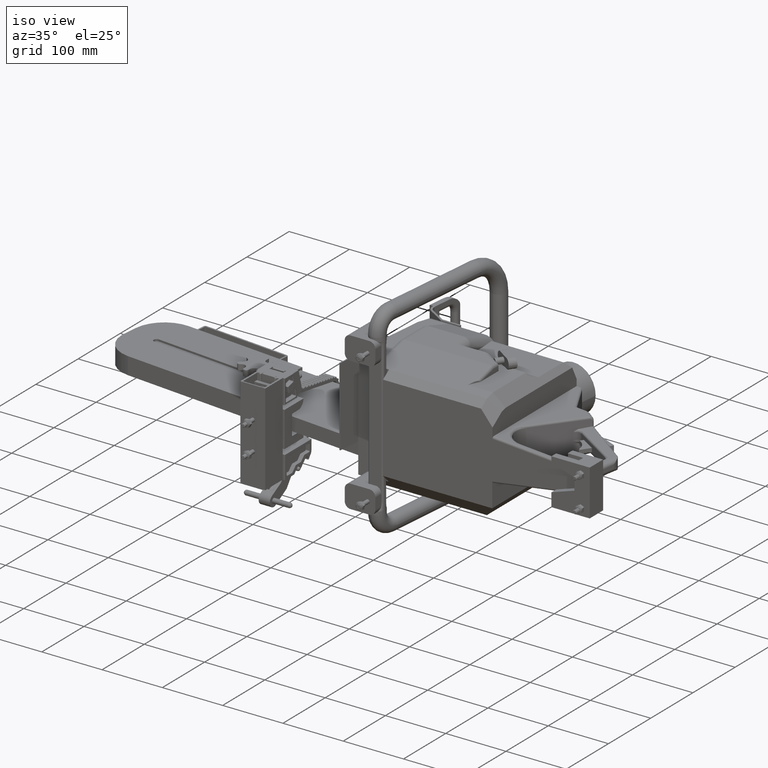
[diagram: clean part render]
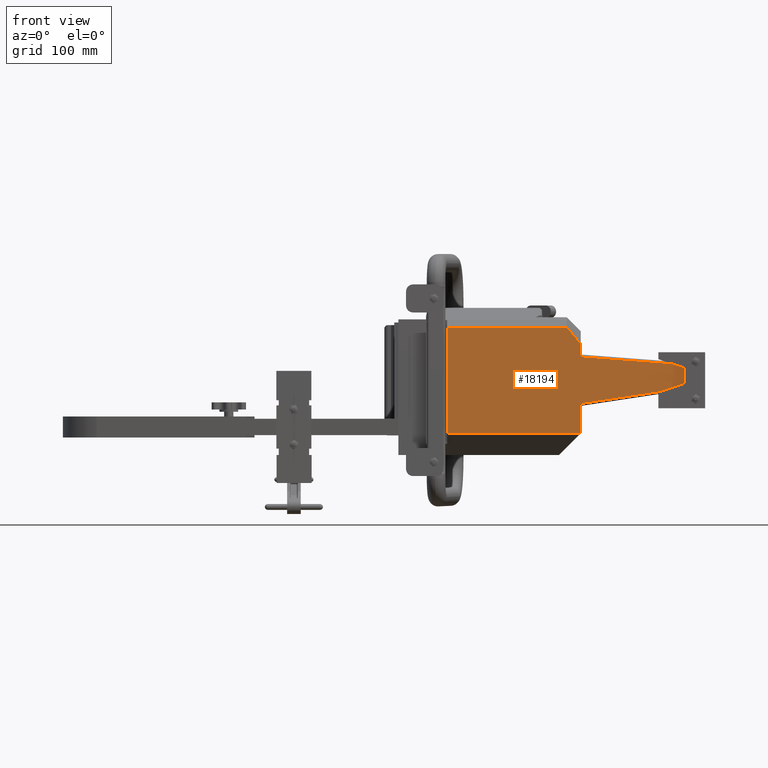
[diagram: tour spotlight — one face highlighted and labeled with its STEP entity id]
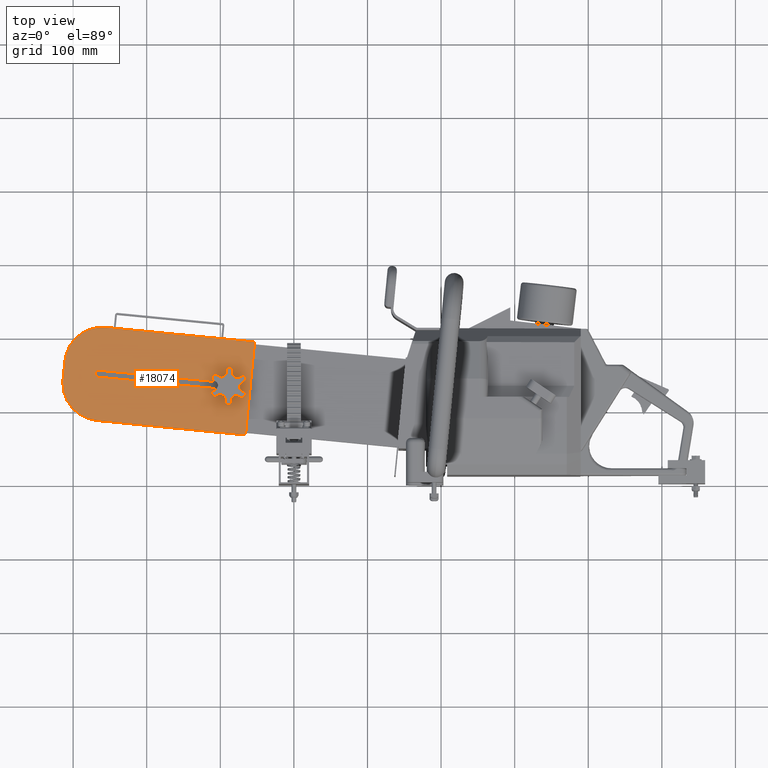
[diagram: tour spotlight — one face highlighted and labeled with its STEP entity id]
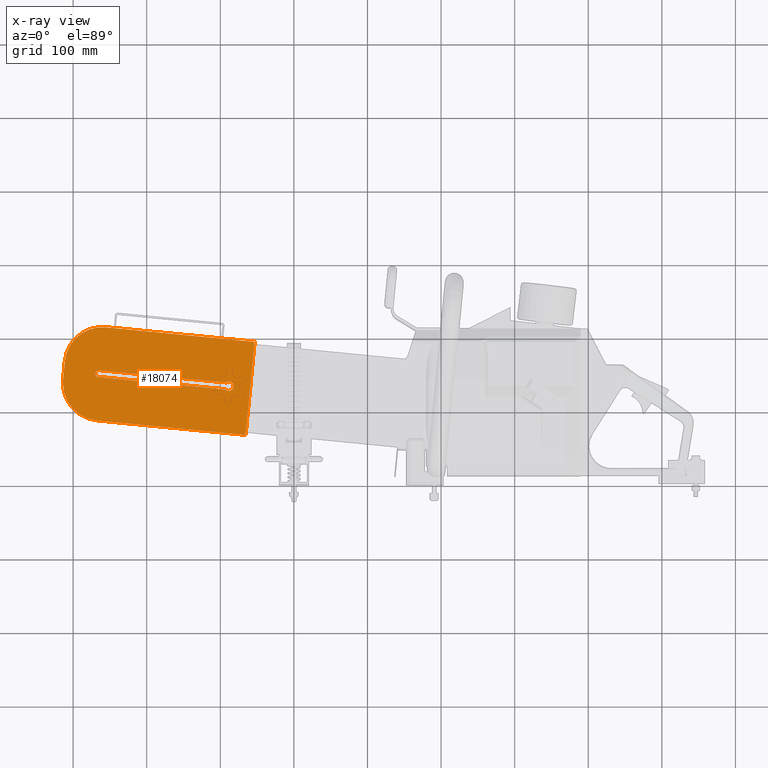
[diagram: x-ray of the same camera — body ghosted, this tour face saturated]
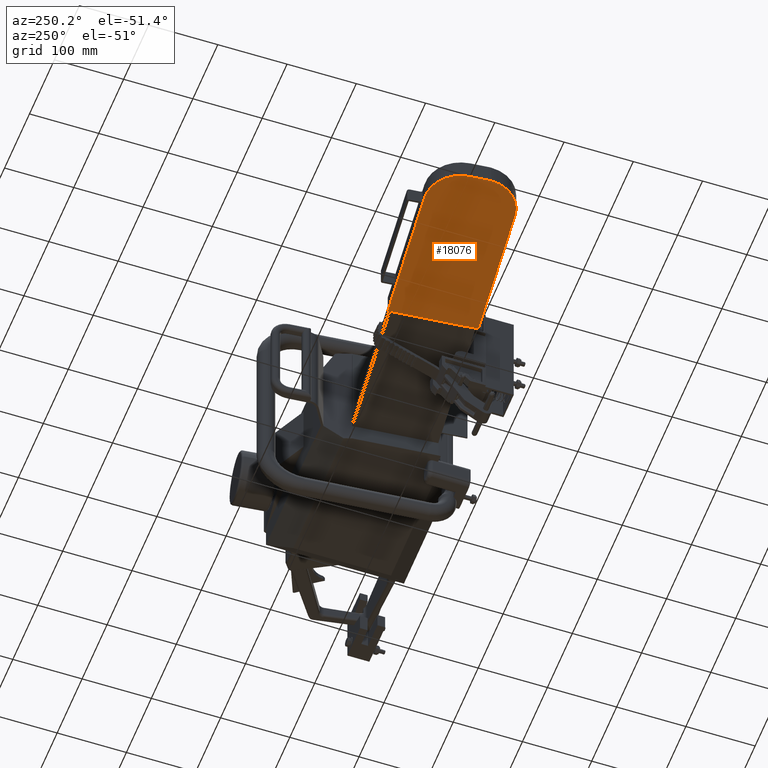
[diagram: tour spotlight — one face highlighted and labeled with its STEP entity id]
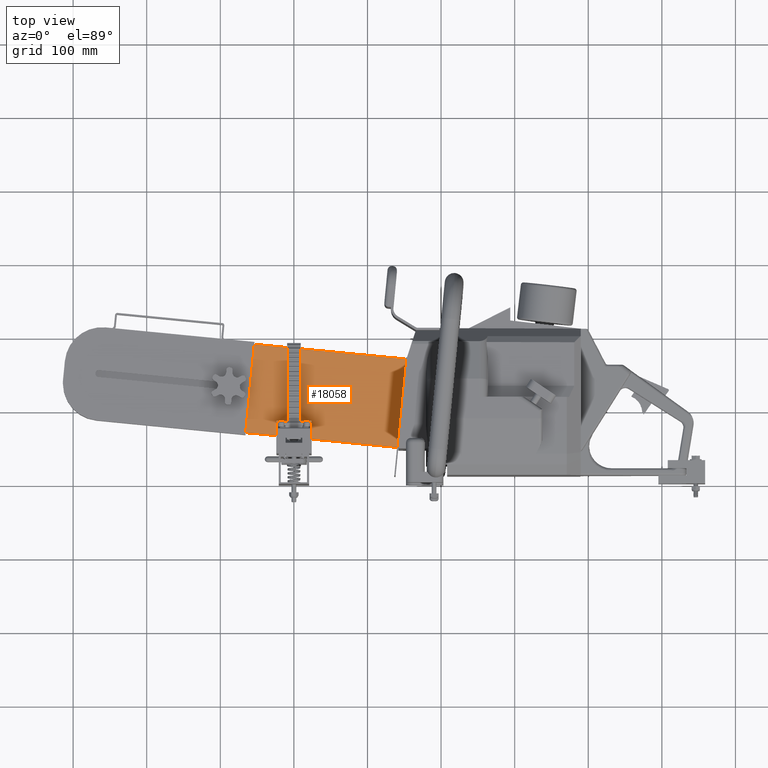
[diagram: tour spotlight — one face highlighted and labeled with its STEP entity id]
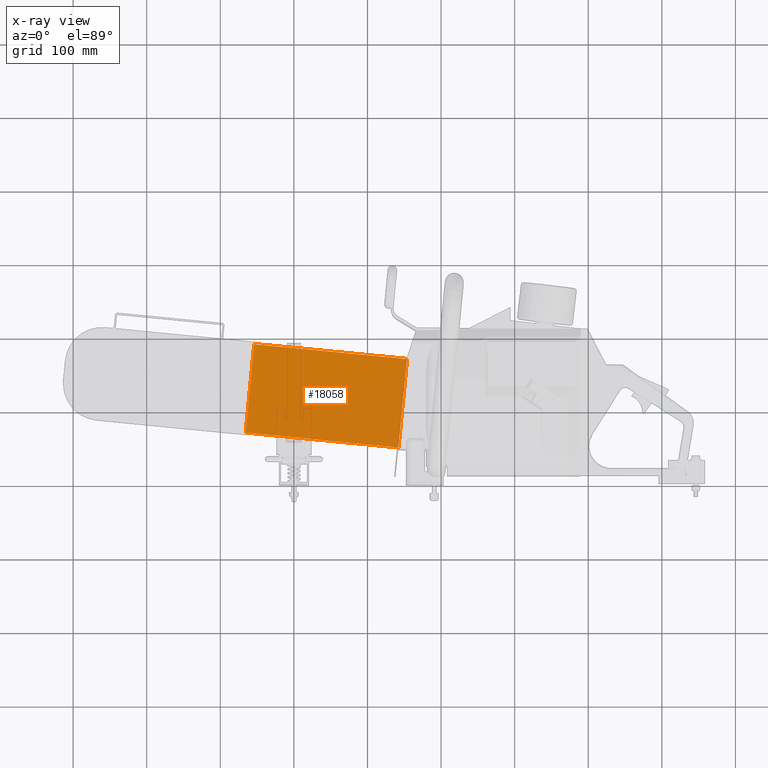
[diagram: x-ray of the same camera — body ghosted, this tour face saturated]
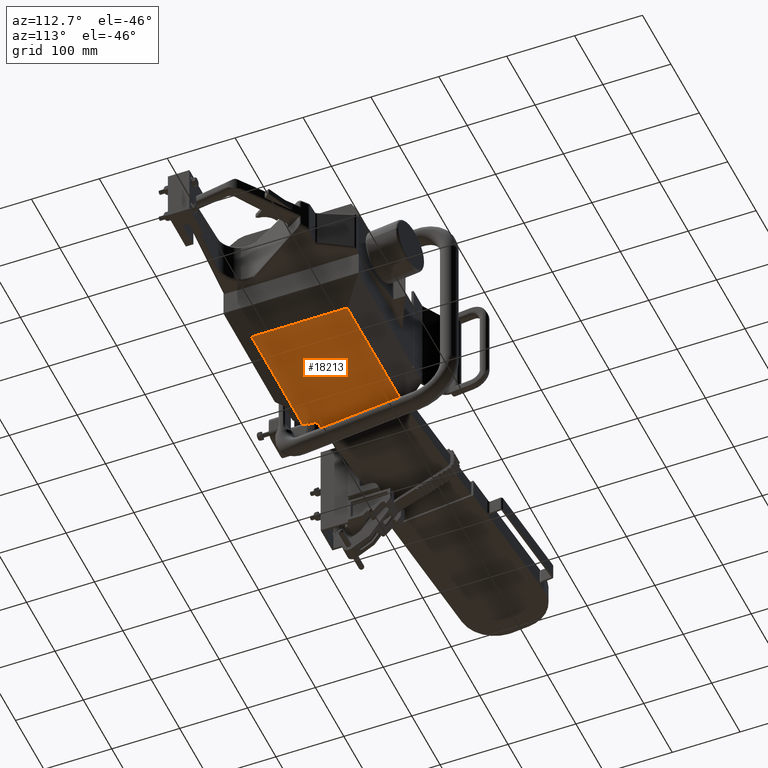
[diagram: tour spotlight — one face highlighted and labeled with its STEP entity id]
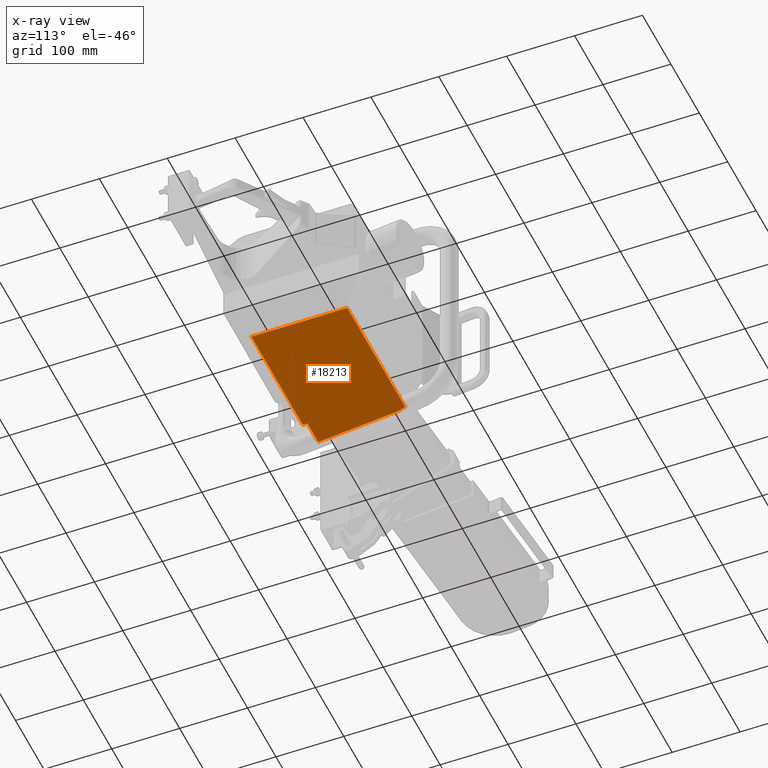
[diagram: x-ray of the same camera — body ghosted, this tour face saturated]
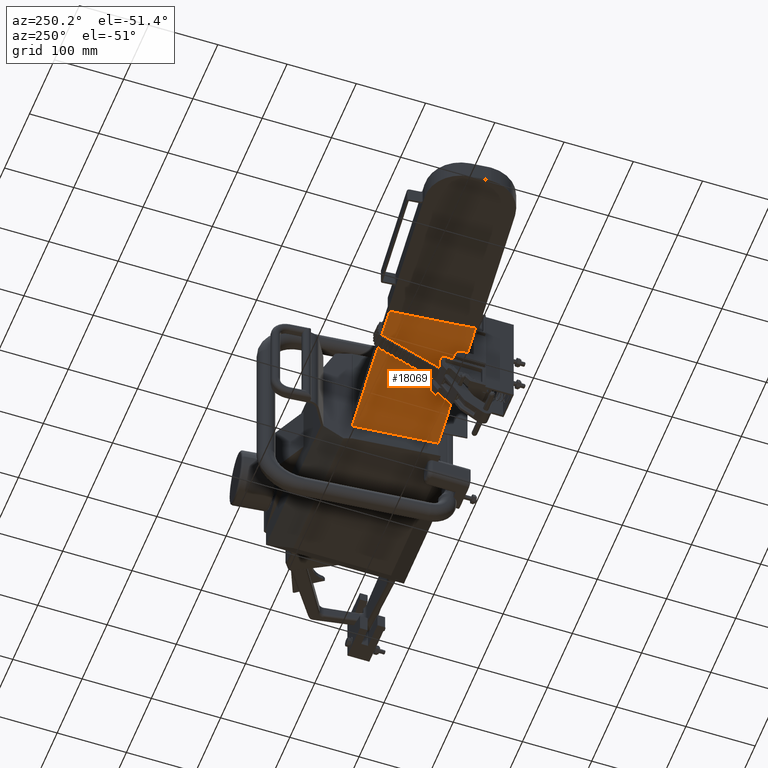
[diagram: tour spotlight — one face highlighted and labeled with its STEP entity id]
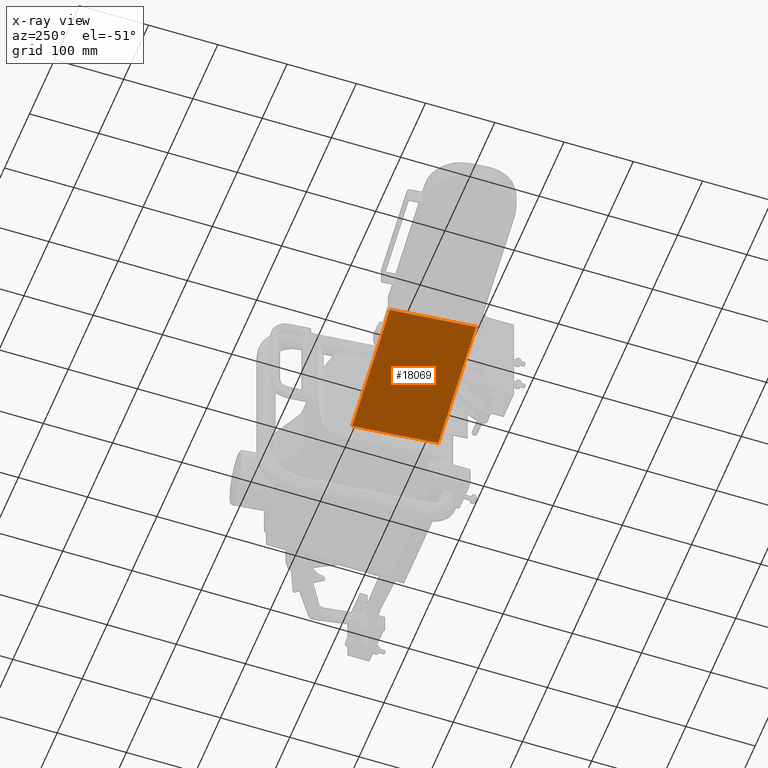
[diagram: x-ray of the same camera — body ghosted, this tour face saturated]
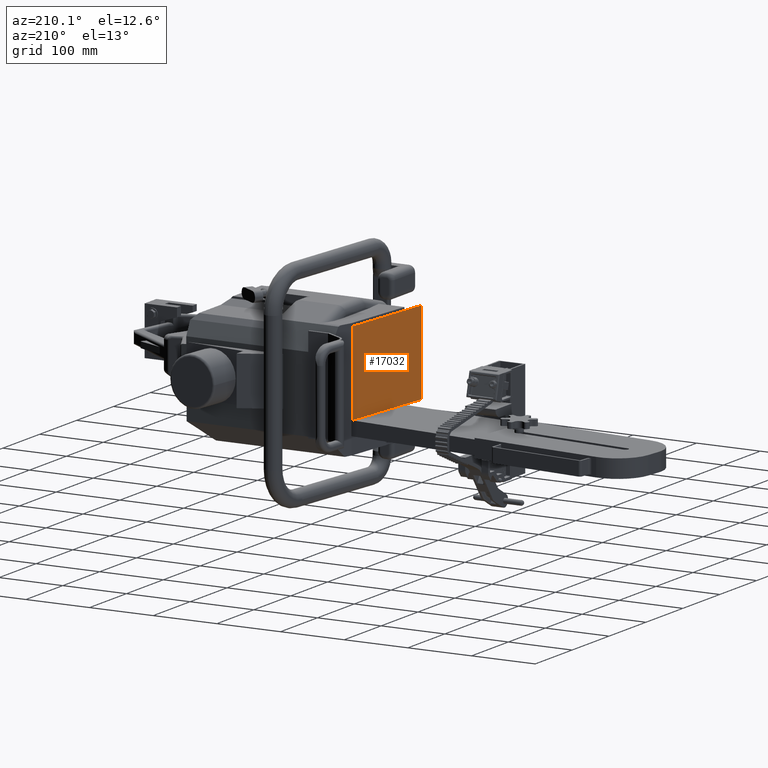
[diagram: tour spotlight — one face highlighted and labeled with its STEP entity id]
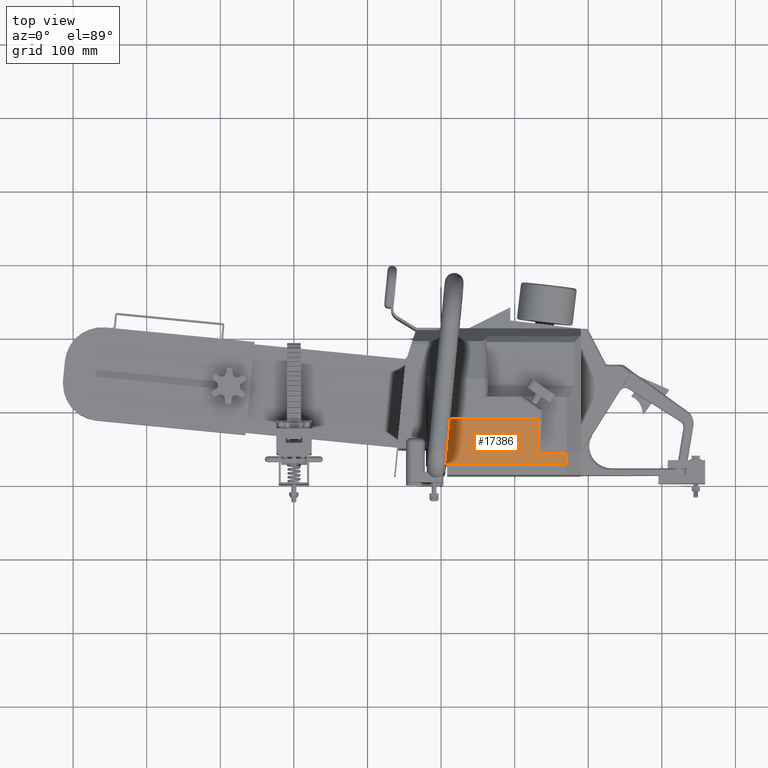
[diagram: tour spotlight — one face highlighted and labeled with its STEP entity id]
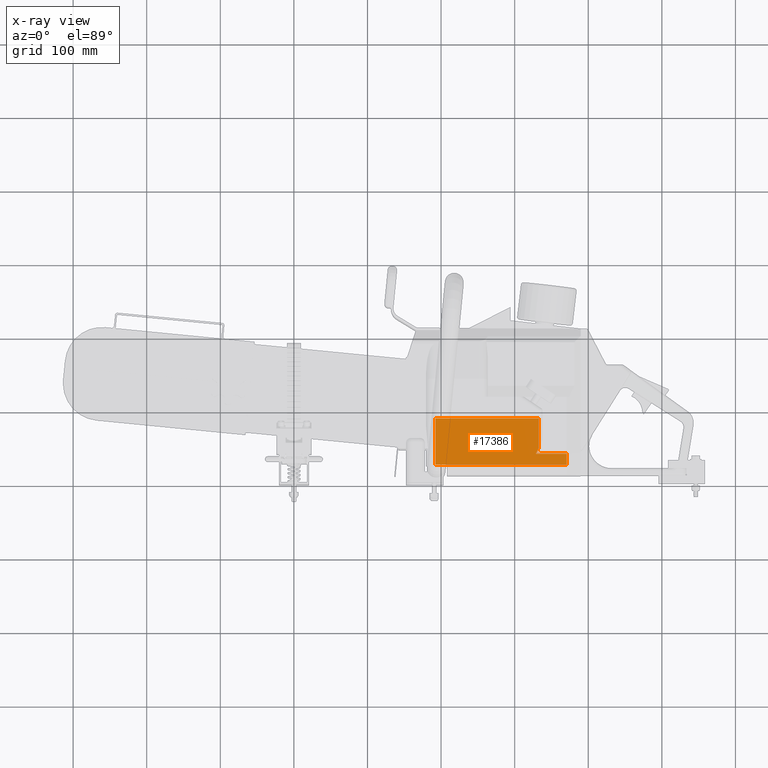
[diagram: x-ray of the same camera — body ghosted, this tour face saturated]
A machine part: a face-by-face anatomy tour. The part has 2120 B-rep faces; the first image is the clean iso view, then the 8 largest visible faces are spotlighted one at a time (largest first), each with its STEP entity span.

Face 1 — front view, entity #18194. In plain terms, the highlighted planar face has unit normal (0, 1, 0).
Definition (entity closure, byte-faithful):
#3891 = CARTESIAN_POINT ( 'NONE',  ( 15.34912009980632600, 0.4350000000000019400, 6.500000000000000000 ) ) ;
#3893 = DIRECTION ( 'NONE',  ( 0.0000000000000000000, 0.0000000000000000000, -1.000000000000000000 ) ) ;
#4304 = LINE ( 'NONE', #3891, #4309 ) ;
#4309 = VECTOR ( 'NONE', #3893, 39.37007874015748100 ) ;
#4611 = LINE ( 'NONE', #5440, #4614 ) ;
#4614 = VECTOR ( 'NONE', #5442, 39.37007874015748900 ) ;
#4616 = LINE ( 'NONE', #5447, #4620 ) ;
#4619 = VECTOR ( 'NONE', #5452, 39.37007874015748100 ) ;
#4620 = VECTOR ( 'NONE', #5449, 39.37007874015748100 ) ;
#4621 = LINE ( 'NONE', #5445, #4619 ) ;
#4623 = LINE ( 'NONE', #5461, #4633 ) ;
#4624 = LINE ( 'NONE', #5459, #4631 ) ;
#4625 = LINE ( 'NONE', #5453, #4629 ) ;
#4628 = CIRCLE ( 'NONE', #64348, 0.2499999999999998100 ) ;
#4629 = VECTOR ( 'NONE', #5458, 39.37007874015748100 ) ;
#4630 = LINE ( 'NONE', #5463, #4635 ) ;
#4631 = VECTOR ( 'NONE', #5460, 39.37007874015748100 ) ;
#4633 = VECTOR ( 'NONE', #5462, 39.37007874015748100 ) ;
#4635 = VECTOR ( 'NONE', #5464, 39.37007874015748100 ) ;
#4636 = VECTOR ( 'NONE', #5471, 39.37007874015748100 ) ;
#4638 = LINE ( 'NONE', #5470, #4636 ) ;
#4643 = CIRCLE ( 'NONE', #64349, 0.2499999999999998100 ) ;
#5440 = CARTESIAN_POINT ( 'NONE',  ( 14.41038544176296700, 0.4350000000000000000, 5.565337142305295100 ) ) ;
#5442 = DIRECTION ( 'NONE',  ( -0.6339215245527856100, -0.0000000000000000000, 0.7733973756799745700 ) ) ;
#5445 = CARTESIAN_POINT ( 'NONE',  ( -12.35850997937516400, 0.4349999999999985000, 5.335076954605308500 ) ) ;
#5447 = CARTESIAN_POINT ( 'NONE',  ( 8.198095042260650400, 0.4350000000000000000, 6.500000000000000000 ) ) ;
#5448 = CARTESIAN_POINT ( 'NONE',  ( 20.62499999999998900, 0.4350000000000000000, 2.305792795370110100 ) ) ;
#5449 = DIRECTION ( 'NONE',  ( -0.0000000000000000000, -0.0000000000000000000, -1.000000000000000000 ) ) ;
#5452 = DIRECTION ( 'NONE',  ( 1.000000000000000000, 1.240801155314842800E-016, -0.0000000000000000000 ) ) ;
#5453 = CARTESIAN_POINT ( 'NONE',  ( 21.65002465993643500, 0.4350000000000000000, 2.208188765809159900 ) ) ;
#5454 = DIRECTION ( 'NONE',  ( -0.0000000000000000000, -1.000000000000000000, 0.0000000000000000000 ) ) ;
#5455 = DIRECTION ( 'NONE',  ( 0.0000000000000000000, 0.0000000000000000000, 1.000000000000000000 ) ) ;
#5458 = DIRECTION ( 'NONE',  ( 0.9887240252346049000, -0.0000000000000000000, 0.1497491299603454000 ) ) ;
#5459 = CARTESIAN_POINT ( 'NONE',  ( 20.75835197187606300, 0.4350000000000000000, 3.337107564974773200 ) ) ;
#5460 = DIRECTION ( 'NONE',  ( -0.9970941615189520300, -0.0000000000000000000, 0.07617895421189593800 ) ) ;
#5461 = CARTESIAN_POINT ( 'NONE',  ( 15.32805962627142200, 0.4350000000000000000, -0.3499999999999970900 ) ) ;
#5462 = DIRECTION ( 'NONE',  ( 1.000000000000000000, 0.0000000000000000000, 0.0000000000000000000 ) ) ;
#5463 = CARTESIAN_POINT ( 'NONE',  ( 15.32805962627142000, 0.4350000000000019400, 1.124257622154827500 ) ) ;
#5464 = DIRECTION ( 'NONE',  ( 8.327987223818647000E-016, 0.0000000000000000000, -1.000000000000000000 ) ) ;
#5468 = CARTESIAN_POINT ( 'NONE',  ( 20.62499999999998900, 0.4350000000000000000, 3.096567207306830200 ) ) ;
#5470 = CARTESIAN_POINT ( 'NONE',  ( 20.87499999999998900, 0.4350000000000000000, 6.500000000000000000 ) ) ;
#5471 = DIRECTION ( 'NONE',  ( -0.0000000000000000000, -0.0000000000000000000, 1.000000000000000000 ) ) ;
#5473 = DIRECTION ( 'NONE',  ( -0.0000000000000000000, -1.000000000000000000, 0.0000000000000000000 ) ) ;
#5474 = DIRECTION ( 'NONE',  ( 0.0000000000000000000, 0.0000000000000000000, 1.000000000000000000 ) ) ;
#12749 = VERTEX_POINT ( 'NONE', #53191 ) ;
#12750 = VERTEX_POINT ( 'NONE', #53192 ) ;
#12856 = VERTEX_POINT ( 'NONE', #53298 ) ;
#12857 = VERTEX_POINT ( 'NONE', #53299 ) ;
#12858 = VERTEX_POINT ( 'NONE', #53300 ) ;
#12859 = VERTEX_POINT ( 'NONE', #53301 ) ;
#12860 = VERTEX_POINT ( 'NONE', #53302 ) ;
#12861 = VERTEX_POINT ( 'NONE', #53303 ) ;
#12862 = VERTEX_POINT ( 'NONE', #53304 ) ;
#12863 = VERTEX_POINT ( 'NONE', #53305 ) ;
#12864 = VERTEX_POINT ( 'NONE', #53306 ) ;
#13302 = EDGE_LOOP ( 'NONE', ( #22552, #22553, #22554, #22555, #22556, #25815, #25817, #25819, #25821, #25823, #25826 ) ) ;
#18194 = ADVANCED_FACE ( 'NONE', ( #48000 ), #62930, .F. ) ;
#20116 = EDGE_CURVE ( 'NONE', #12749, #12750, #4304, .T. ) ;
#20401 = EDGE_CURVE ( 'NONE', #12749, #12859, #4611, .T. ) ;
#20408 = EDGE_CURVE ( 'NONE', #12857, #12856, #4616, .T. ) ;
#20412 = EDGE_CURVE ( 'NONE', #12857, #12859, #4621, .T. ) ;
#20414 = EDGE_CURVE ( 'NONE', #12862, #12863, #4628, .T. ) ;
#20419 = EDGE_CURVE ( 'NONE', #12861, #12862, #4625, .T. ) ;
#20421 = EDGE_CURVE ( 'NONE', #12858, #12750, #4624, .T. ) ;
#20423 = EDGE_CURVE ( 'NONE', #12856, #12860, #4623, .T. ) ;
#20425 = EDGE_CURVE ( 'NONE', #12861, #12860, #4630, .T. ) ;
#20430 = EDGE_CURVE ( 'NONE', #12863, #12864, #4638, .T. ) ;
#20432 = EDGE_CURVE ( 'NONE', #12864, #12858, #4643, .T. ) ;
#22552 = ORIENTED_EDGE ( 'NONE', *, *, #20421, .T. ) ;
#22553 = ORIENTED_EDGE ( 'NONE', *, *, #20116, .F. ) ;
#22554 = ORIENTED_EDGE ( 'NONE', *, *, #20401, .T. ) ;
#22555 = ORIENTED_EDGE ( 'NONE', *, *, #20412, .F. ) ;
#22556 = ORIENTED_EDGE ( 'NONE', *, *, #20408, .T. ) ;
#25815 = ORIENTED_EDGE ( 'NONE', *, *, #20423, .T. ) ;
#25817 = ORIENTED_EDGE ( 'NONE', *, *, #20425, .F. ) ;
#25819 = ORIENTED_EDGE ( 'NONE', *, *, #20419, .T. ) ;
#25821 = ORIENTED_EDGE ( 'NONE', *, *, #20414, .T. ) ;
#25823 = ORIENTED_EDGE ( 'NONE', *, *, #20430, .T. ) ;
#25826 = ORIENTED_EDGE ( 'NONE', *, *, #20432, .T. ) ;
#48000 = FACE_OUTER_BOUND ( 'NONE', #13302, .T. ) ;
#53191 = CARTESIAN_POINT ( 'NONE',  ( 15.34912009980632600, 0.4350000000000009400, 4.420061437236350700 ) ) ;
#53192 = CARTESIAN_POINT ( 'NONE',  ( 15.34912009980632600, 0.4350000000000000000, 3.750378089471868600 ) ) ;
#53298 = CARTESIAN_POINT ( 'NONE',  ( 8.198095042260650400, 0.4350000000000000000, -0.3499999999999970900 ) ) ;
#53299 = CARTESIAN_POINT ( 'NONE',  ( 8.198095042260650400, 0.4350000000000010500, 5.335076954605308500 ) ) ;
#53300 = CARTESIAN_POINT ( 'NONE',  ( 20.64404473855296400, 0.4350000000000000000, 3.345840747686568100 ) ) ;
#53301 = CARTESIAN_POINT ( 'NONE',  ( 14.59912009980631400, 0.4350000000000009400, 5.335076954605310300 ) ) ;
#53302 = CARTESIAN_POINT ( 'NONE',  ( 15.32805962627142200, 0.4350000000000018300, -0.3499999999999988100 ) ) ;
#53303 = CARTESIAN_POINT ( 'NONE',  ( 15.32805962627142000, 0.4350000000000000000, 1.250683193709377000 ) ) ;
#53304 = CARTESIAN_POINT ( 'NONE',  ( 20.66243728249007500, 0.4350000000000000000, 2.058611789061458400 ) ) ;
#53305 = CARTESIAN_POINT ( 'NONE',  ( 20.87499999999998900, 0.4350000000000000000, 2.305792795370110100 ) ) ;
#53306 = CARTESIAN_POINT ( 'NONE',  ( 20.87499999999998900, 0.4350000000000000000, 3.096567207306830200 ) ) ;
#62925 = CARTESIAN_POINT ( 'NONE',  ( 20.99999999999999300, 0.4350000000000000000, 6.500000000000000000 ) ) ;
#62930 = PLANE ( 'NONE',  #63632 ) ;
#62935 = DIRECTION ( 'NONE',  ( 0.0000000000000000000, 1.000000000000000000, -0.0000000000000000000 ) ) ;
#62936 = DIRECTION ( 'NONE',  ( 0.0000000000000000000, 0.0000000000000000000, 1.000000000000000000 ) ) ;
#63632 = AXIS2_PLACEMENT_3D ( 'NONE', #62925, #62935, #62936 ) ;
#64348 = AXIS2_PLACEMENT_3D ( 'NONE', #5448, #5454, #5455 ) ;
#64349 = AXIS2_PLACEMENT_3D ( 'NONE', #5468, #5473, #5474 ) ;

Face 2 — top view, entity #18074. An x-ray twin of the same camera follows (body ghosted, this face saturated) — the face is partly hidden behind the body. In plain terms, the highlighted planar face has unit normal (0, 0, 1).
Definition (entity closure, byte-faithful):
#3545 = CARTESIAN_POINT ( 'NONE',  ( -3.483961746939009600, 5.254724945186095100, 0.5624999999999998900 ) ) ;
#3564 = DIRECTION ( 'NONE',  ( 0.0000000000000000000, 0.0000000000000000000, 1.000000000000000000 ) ) ;
#3565 = DIRECTION ( 'NONE',  ( 1.000000000000000000, 0.0000000000000000000, 0.0000000000000000000 ) ) ;
#3607 = CARTESIAN_POINT ( 'NONE',  ( -10.35847060929642700, 5.421561490035578900, 0.5624999999999998900 ) ) ;
#3608 = DIRECTION ( 'NONE',  ( 0.0000000000000000000, 0.0000000000000000000, 1.000000000000000000 ) ) ;
#3609 = DIRECTION ( 'NONE',  ( 1.000000000000000000, 0.0000000000000000000, 0.0000000000000000000 ) ) ;
#3931 = CARTESIAN_POINT ( 'NONE',  ( -2.105446150163820600, 7.632350325939833100, 0.5624999999999998900 ) ) ;
#3933 = DIRECTION ( 'NONE',  ( -0.9952953723393649400, 0.09688716013923000200, 0.0000000000000000000 ) ) ;
#4001 = CARTESIAN_POINT ( 'NONE',  ( -10.26158344915719700, 6.416856862374941400, 0.5624999999999998900 ) ) ;
#4003 = DIRECTION ( 'NONE',  ( 0.0000000000000000000, 0.0000000000000000000, 1.000000000000000000 ) ) ;
#4004 = DIRECTION ( 'NONE',  ( 1.000000000000000000, 0.0000000000000000000, 0.0000000000000000000 ) ) ;
#4005 = CARTESIAN_POINT ( 'NONE',  ( -10.35847060929642700, 5.421561490035578900, 0.5624999999999998900 ) ) ;
#4010 = CARTESIAN_POINT ( 'NONE',  ( -12.25217419383592900, 6.610631182653403200, 0.5624999999999998900 ) ) ;
#4012 = DIRECTION ( 'NONE',  ( -0.09688716013922957200, -0.9952953723393651600, 0.0000000000000000000 ) ) ;
#4014 = DIRECTION ( 'NONE',  ( 0.0000000000000000000, 0.0000000000000000000, 1.000000000000000000 ) ) ;
#4015 = DIRECTION ( 'NONE',  ( 1.000000000000000000, 0.0000000000000000000, 0.0000000000000000000 ) ) ;
#4021 = CARTESIAN_POINT ( 'NONE',  ( -10.55224492957487000, 3.430970745356845900, 0.5624999999999998900 ) ) ;
#4022 = DIRECTION ( 'NONE',  ( 0.9952953723393649400, -0.09688716013922997500, 0.0000000000000000000 ) ) ;
#4035 = CARTESIAN_POINT ( 'NONE',  ( -2.105446150163820600, 7.632350325939833100, 0.5624999999999998900 ) ) ;
#4036 = DIRECTION ( 'NONE',  ( 0.09688716013922994700, 0.9952953723393649400, -0.0000000000000000000 ) ) ;
#4038 = CARTESIAN_POINT ( 'NONE',  ( -10.43787459524712900, 5.931654514490423600, 0.5624999999999998900 ) ) ;
#4041 = CARTESIAN_POINT ( 'NONE',  ( -10.45604093777323500, 5.745036632176790700, 0.5624999999999998900 ) ) ;
#4044 = DIRECTION ( 'NONE',  ( 0.0000000000000000000, 0.0000000000000000000, 1.000000000000000000 ) ) ;
#4045 = DIRECTION ( 'NONE',  ( 1.000000000000000000, 0.0000000000000000000, 0.0000000000000000000 ) ) ;
#4046 = CARTESIAN_POINT ( 'NONE',  ( -3.483961746939009600, 5.254724945186095100, 0.5624999999999998900 ) ) ;
#4047 = DIRECTION ( 'NONE',  ( 0.9952953723393649400, -0.09688716013922980800, 0.0000000000000000000 ) ) ;
#4049 = DIRECTION ( 'NONE',  ( 0.0000000000000000000, 0.0000000000000000000, 1.000000000000000000 ) ) ;
#4050 = DIRECTION ( 'NONE',  ( 1.000000000000000000, 0.0000000000000000000, 0.0000000000000000000 ) ) ;
#4051 = CARTESIAN_POINT ( 'NONE',  ( -10.41970825272102300, 6.118272396804052000, 0.5624999999999998900 ) ) ;
#4052 = DIRECTION ( 'NONE',  ( -0.9952953723393649400, 0.09688716013922982200, -0.0000000000000000000 ) ) ;
#4171 = CIRCLE ( 'NONE', #64272, 0.2499999999999998100 ) ;
#4201 = CIRCLE ( 'NONE', #64278, 2.000000000000001800 ) ;
#4340 = LINE ( 'NONE', #3931, #4345 ) ;
#4345 = VECTOR ( 'NONE', #3933, 39.37007874015748900 ) ;
#4390 = VECTOR ( 'NONE', #4012, 39.37007874015748100 ) ;
#4392 = LINE ( 'NONE', #4010, #4390 ) ;
#4395 = CIRCLE ( 'NONE', #64295, 2.000000000000001800 ) ;
#4399 = LINE ( 'NONE', #4021, #4400 ) ;
#4400 = VECTOR ( 'NONE', #4022, 39.37007874015748900 ) ;
#4402 = CIRCLE ( 'NONE', #64290, 2.000000000000001800 ) ;
#4418 = LINE ( 'NONE', #4035, #4421 ) ;
#4421 = VECTOR ( 'NONE', #4036, 39.37007874015748900 ) ;
#4425 = VECTOR ( 'NONE', #4047, 39.37007874015748900 ) ;
#4426 = LINE ( 'NONE', #4051, #4427 ) ;
#4427 = VECTOR ( 'NONE', #4052, 39.37007874015748900 ) ;
#4428 = LINE ( 'NONE', #4041, #4425 ) ;
#4429 = CIRCLE ( 'NONE', #64294, 0.1875000000000001100 ) ;
#4431 = CIRCLE ( 'NONE', #64299, 0.2499999999999998100 ) ;
#12670 = VERTEX_POINT ( 'NONE', #53112 ) ;
#12671 = VERTEX_POINT ( 'NONE', #53113 ) ;
#12677 = VERTEX_POINT ( 'NONE', #53119 ) ;
#12678 = VERTEX_POINT ( 'NONE', #53120 ) ;
#12762 = VERTEX_POINT ( 'NONE', #53204 ) ;
#12763 = VERTEX_POINT ( 'NONE', #53205 ) ;
#12789 = VERTEX_POINT ( 'NONE', #53231 ) ;
#12791 = VERTEX_POINT ( 'NONE', #53233 ) ;
#12793 = VERTEX_POINT ( 'NONE', #53235 ) ;
#12798 = VERTEX_POINT ( 'NONE', #53240 ) ;
#12799 = VERTEX_POINT ( 'NONE', #53241 ) ;
#12800 = VERTEX_POINT ( 'NONE', #53242 ) ;
#13199 = EDGE_LOOP ( 'NONE', ( #16447, #16448, #16451, #16454, #16456 ) ) ;
#13210 = EDGE_LOOP ( 'NONE', ( #16459, #16461, #16463, #16466, #16469, #16471, #16474 ) ) ;
#16447 = ORIENTED_EDGE ( 'NONE', *, *, #20237, .F. ) ;
#16448 = ORIENTED_EDGE ( 'NONE', *, *, #20236, .F. ) ;
#16451 = ORIENTED_EDGE ( 'NONE', *, *, #20235, .F. ) ;
#16454 = ORIENTED_EDGE ( 'NONE', *, *, #20238, .F. ) ;
#16456 = ORIENTED_EDGE ( 'NONE', *, *, #19956, .F. ) ;
#16459 = ORIENTED_EDGE ( 'NONE', *, *, #20204, .T. ) ;
#16461 = ORIENTED_EDGE ( 'NONE', *, *, #20210, .T. ) ;
#16463 = ORIENTED_EDGE ( 'NONE', *, *, #20212, .T. ) ;
#16466 = ORIENTED_EDGE ( 'NONE', *, *, #19977, .T. ) ;
#16469 = ORIENTED_EDGE ( 'NONE', *, *, #20216, .T. ) ;
#16471 = ORIENTED_EDGE ( 'NONE', *, *, #20229, .T. ) ;
#16474 = ORIENTED_EDGE ( 'NONE', *, *, #20150, .T. ) ;
#18074 = ADVANCED_FACE ( 'NONE', ( #47838, #47834 ), #62746, .T. ) ;
#19956 = EDGE_CURVE ( 'NONE', #12670, #12671, #4171, .T. ) ;
#19977 = EDGE_CURVE ( 'NONE', #12677, #12678, #4201, .T. ) ;
#20150 = EDGE_CURVE ( 'NONE', #12763, #12762, #4340, .T. ) ;
#20204 = EDGE_CURVE ( 'NONE', #12762, #12789, #4395, .T. ) ;
#20210 = EDGE_CURVE ( 'NONE', #12789, #12791, #4392, .T. ) ;
#20212 = EDGE_CURVE ( 'NONE', #12791, #12677, #4402, .T. ) ;
#20216 = EDGE_CURVE ( 'NONE', #12678, #12793, #4399, .T. ) ;
#20229 = EDGE_CURVE ( 'NONE', #12793, #12763, #4418, .T. ) ;
#20235 = EDGE_CURVE ( 'NONE', #12800, #12799, #4429, .T. ) ;
#20236 = EDGE_CURVE ( 'NONE', #12799, #12798, #4428, .T. ) ;
#20237 = EDGE_CURVE ( 'NONE', #12798, #12670, #4431, .T. ) ;
#20238 = EDGE_CURVE ( 'NONE', #12671, #12800, #4426, .T. ) ;
#47834 = FACE_OUTER_BOUND ( 'NONE', #13210, .T. ) ;
#47838 = FACE_BOUND ( 'NONE', #13199, .T. ) ;
#53112 = CARTESIAN_POINT ( 'NONE',  ( -3.233961746939010100, 5.254724945186095100, 0.5624999999999998900 ) ) ;
#53113 = CARTESIAN_POINT ( 'NONE',  ( -3.630376906679368500, 5.457364035684955500, 0.5624999999999998900 ) ) ;
#53119 = CARTESIAN_POINT ( 'NONE',  ( -12.35847060929642700, 5.421561490035578900, 0.5624999999999998900 ) ) ;
#53120 = CARTESIAN_POINT ( 'NONE',  ( -10.55224492957487000, 3.430970745356845900, 0.5624999999999998900 ) ) ;
#53204 = CARTESIAN_POINT ( 'NONE',  ( -10.06780912887873600, 8.407447607053672600, 0.5624999999999998900 ) ) ;
#53205 = CARTESIAN_POINT ( 'NONE',  ( -2.105446150163820600, 7.632350325939833100, 0.5624999999999998900 ) ) ;
#53231 = CARTESIAN_POINT ( 'NONE',  ( -12.25217419383592900, 6.610631182653403200, 0.5624999999999998900 ) ) ;
#53233 = CARTESIAN_POINT ( 'NONE',  ( -12.34906135397515700, 5.615335810314038900, 0.5624999999999998900 ) ) ;
#53235 = CARTESIAN_POINT ( 'NONE',  ( -2.589881950859970400, 2.655873464243008200, 0.5624999999999998900 ) ) ;
#53240 = CARTESIAN_POINT ( 'NONE',  ( -3.666709591731577100, 5.084128271057694300, 0.5624999999999998900 ) ) ;
#53241 = CARTESIAN_POINT ( 'NONE',  ( -10.45604093777323500, 5.745036632176790700, 0.5624999999999998900 ) ) ;
#53242 = CARTESIAN_POINT ( 'NONE',  ( -10.41970825272102300, 6.118272396804052000, 0.5624999999999998900 ) ) ;
#62746 = PLANE ( 'NONE',  #63583 ) ;
#62756 = CARTESIAN_POINT ( 'NONE',  ( -10.26158344915719700, 6.416856862374941400, 0.5624999999999998900 ) ) ;
#62762 = DIRECTION ( 'NONE',  ( 0.0000000000000000000, 0.0000000000000000000, 1.000000000000000000 ) ) ;
#62763 = DIRECTION ( 'NONE',  ( 1.000000000000000000, 0.0000000000000000000, -0.0000000000000000000 ) ) ;
#63583 = AXIS2_PLACEMENT_3D ( 'NONE', #62756, #62762, #62763 ) ;
#64272 = AXIS2_PLACEMENT_3D ( 'NONE', #3545, #3564, #3565 ) ;
#64278 = AXIS2_PLACEMENT_3D ( 'NONE', #3607, #3608, #3609 ) ;
#64290 = AXIS2_PLACEMENT_3D ( 'NONE', #4005, #4014, #4015 ) ;
#64294 = AXIS2_PLACEMENT_3D ( 'NONE', #4038, #4044, #4045 ) ;
#64295 = AXIS2_PLACEMENT_3D ( 'NONE', #4001, #4003, #4004 ) ;
#64299 = AXIS2_PLACEMENT_3D ( 'NONE', #4046, #4049, #4050 ) ;

Face 3 — auxiliary view, entity #18076. In plain terms, the highlighted planar face has unit normal (0, 0, -1).
Definition (entity closure, byte-faithful):
#3586 = CARTESIAN_POINT ( 'NONE',  ( -10.35847060929642700, 5.421561490035578900, -0.5624999999999998900 ) ) ;
#3593 = DIRECTION ( 'NONE',  ( 0.0000000000000000000, 0.0000000000000000000, -1.000000000000000000 ) ) ;
#3594 = DIRECTION ( 'NONE',  ( -1.000000000000000000, 0.0000000000000000000, 0.0000000000000000000 ) ) ;
#3920 = CARTESIAN_POINT ( 'NONE',  ( -10.06780912887873600, 8.407447607053672600, -0.5624999999999998900 ) ) ;
#3921 = DIRECTION ( 'NONE',  ( 0.9952953723393649400, -0.09688716013923000200, 0.0000000000000000000 ) ) ;
#3988 = CARTESIAN_POINT ( 'NONE',  ( -10.26158344915719700, 6.416856862374941400, -0.5624999999999998900 ) ) ;
#3994 = DIRECTION ( 'NONE',  ( 0.0000000000000000000, 0.0000000000000000000, -1.000000000000000000 ) ) ;
#3995 = DIRECTION ( 'NONE',  ( -1.000000000000000000, 0.0000000000000000000, 0.0000000000000000000 ) ) ;
#4006 = CARTESIAN_POINT ( 'NONE',  ( -12.34906135397515700, 5.615335810314038100, -0.5624999999999998900 ) ) ;
#4007 = DIRECTION ( 'NONE',  ( 0.09688716013922946100, 0.9952953723393651600, 0.0000000000000000000 ) ) ;
#4013 = CARTESIAN_POINT ( 'NONE',  ( -10.35847060929642700, 5.421561490035578900, -0.5624999999999998900 ) ) ;
#4018 = CARTESIAN_POINT ( 'NONE',  ( -2.589881950859970400, 2.655873464243008200, -0.5624999999999998900 ) ) ;
#4019 = DIRECTION ( 'NONE',  ( 0.0000000000000000000, 0.0000000000000000000, -1.000000000000000000 ) ) ;
#4020 = DIRECTION ( 'NONE',  ( -1.000000000000000000, 0.0000000000000000000, 0.0000000000000000000 ) ) ;
#4024 = DIRECTION ( 'NONE',  ( -0.9952953723393649400, 0.09688716013922997500, 0.0000000000000000000 ) ) ;
#4040 = CARTESIAN_POINT ( 'NONE',  ( -2.105446150163820600, 7.632350325939833100, -0.5624999999999998900 ) ) ;
#4042 = DIRECTION ( 'NONE',  ( -0.09688716013922994700, -0.9952953723393649400, 0.0000000000000000000 ) ) ;
#4188 = CIRCLE ( 'NONE', #64277, 2.000000000000000400 ) ;
#4328 = LINE ( 'NONE', #3920, #4333 ) ;
#4333 = VECTOR ( 'NONE', #3921, 39.37007874015748900 ) ;
#4387 = CIRCLE ( 'NONE', #64293, 2.000000000000000400 ) ;
#4393 = LINE ( 'NONE', #4006, #4394 ) ;
#4394 = VECTOR ( 'NONE', #4007, 39.37007874015748100 ) ;
#4403 = LINE ( 'NONE', #4018, #4404 ) ;
#4404 = VECTOR ( 'NONE', #4024, 39.37007874015748900 ) ;
#4406 = CIRCLE ( 'NONE', #64296, 2.000000000000000400 ) ;
#4419 = LINE ( 'NONE', #4040, #4424 ) ;
#4424 = VECTOR ( 'NONE', #4042, 39.37007874015748900 ) ;
#12679 = VERTEX_POINT ( 'NONE', #53121 ) ;
#12680 = VERTEX_POINT ( 'NONE', #53122 ) ;
#12760 = VERTEX_POINT ( 'NONE', #53202 ) ;
#12761 = VERTEX_POINT ( 'NONE', #53203 ) ;
#12788 = VERTEX_POINT ( 'NONE', #53230 ) ;
#12790 = VERTEX_POINT ( 'NONE', #53232 ) ;
#12792 = VERTEX_POINT ( 'NONE', #53234 ) ;
#13204 = EDGE_LOOP ( 'NONE', ( #16477, #16479, #16482, #16484, #16486, #16489, #16492 ) ) ;
#16477 = ORIENTED_EDGE ( 'NONE', *, *, #20195, .T. ) ;
#16479 = ORIENTED_EDGE ( 'NONE', *, *, #20143, .T. ) ;
#16482 = ORIENTED_EDGE ( 'NONE', *, *, #20233, .T. ) ;
#16484 = ORIENTED_EDGE ( 'NONE', *, *, #20220, .T. ) ;
#16486 = ORIENTED_EDGE ( 'NONE', *, *, #19968, .T. ) ;
#16489 = ORIENTED_EDGE ( 'NONE', *, *, #20215, .T. ) ;
#16492 = ORIENTED_EDGE ( 'NONE', *, *, #20207, .T. ) ;
#18076 = ADVANCED_FACE ( 'NONE', ( #47841 ), #62760, .T. ) ;
#19968 = EDGE_CURVE ( 'NONE', #12680, #12679, #4188, .T. ) ;
#20143 = EDGE_CURVE ( 'NONE', #12760, #12761, #4328, .T. ) ;
#20195 = EDGE_CURVE ( 'NONE', #12788, #12760, #4387, .T. ) ;
#20207 = EDGE_CURVE ( 'NONE', #12790, #12788, #4393, .T. ) ;
#20215 = EDGE_CURVE ( 'NONE', #12679, #12790, #4406, .T. ) ;
#20220 = EDGE_CURVE ( 'NONE', #12792, #12680, #4403, .T. ) ;
#20233 = EDGE_CURVE ( 'NONE', #12761, #12792, #4419, .T. ) ;
#47841 = FACE_OUTER_BOUND ( 'NONE', #13204, .T. ) ;
#53121 = CARTESIAN_POINT ( 'NONE',  ( -12.35847060929642700, 5.421561490035578900, -0.5624999999999998900 ) ) ;
#53122 = CARTESIAN_POINT ( 'NONE',  ( -10.55224492957487000, 3.430970745356845900, -0.5624999999999998900 ) ) ;
#53202 = CARTESIAN_POINT ( 'NONE',  ( -10.06780912887873600, 8.407447607053672600, -0.5624999999999998900 ) ) ;
#53203 = CARTESIAN_POINT ( 'NONE',  ( -2.105446150163820600, 7.632350325939833100, -0.5624999999999998900 ) ) ;
#53230 = CARTESIAN_POINT ( 'NONE',  ( -12.25217419383592900, 6.610631182653403200, -0.5624999999999998900 ) ) ;
#53232 = CARTESIAN_POINT ( 'NONE',  ( -12.34906135397515700, 5.615335810314038100, -0.5624999999999998900 ) ) ;
#53234 = CARTESIAN_POINT ( 'NONE',  ( -2.589881950859970400, 2.655873464243008200, -0.5624999999999998900 ) ) ;
#62760 = PLANE ( 'NONE',  #63584 ) ;
#62761 = CARTESIAN_POINT ( 'NONE',  ( -10.26158344915719700, 6.416856862374941400, -0.5624999999999998900 ) ) ;
#62766 = DIRECTION ( 'NONE',  ( 0.0000000000000000000, 0.0000000000000000000, -1.000000000000000000 ) ) ;
#62767 = DIRECTION ( 'NONE',  ( -1.000000000000000000, 0.0000000000000000000, -0.0000000000000000000 ) ) ;
#63584 = AXIS2_PLACEMENT_3D ( 'NONE', #62761, #62766, #62767 ) ;
#64277 = AXIS2_PLACEMENT_3D ( 'NONE', #3586, #3593, #3594 ) ;
#64293 = AXIS2_PLACEMENT_3D ( 'NONE', #3988, #3994, #3995 ) ;
#64296 = AXIS2_PLACEMENT_3D ( 'NONE', #4013, #4019, #4020 ) ;

Face 4 — top view, entity #18058. An x-ray twin of the same camera follows (body ghosted, this face saturated) — the face is partly hidden behind the body. In plain terms, the highlighted planar face has unit normal (0, 0, -1).
Definition (entity closure, byte-faithful):
#3975 = CARTESIAN_POINT ( 'NONE',  ( 5.576123993595691000, 1.860952531596883600, 0.4375000000000000000 ) ) ;
#3977 = DIRECTION ( 'NONE',  ( 0.09688716013922973900, 0.9952953723393649400, 0.0000000000000000000 ) ) ;
#3991 = CARTESIAN_POINT ( 'NONE',  ( -2.105446150163820600, 7.632350325939833100, 0.4375000000000000000 ) ) ;
#3993 = CARTESIAN_POINT ( 'NONE',  ( -2.997282179012167500, 7.593575364327855400, 0.4375000000000000000 ) ) ;
#3996 = CARTESIAN_POINT ( 'NONE',  ( -3.457496189673508800, 2.865922345715872700, 0.4375000000000000000 ) ) ;
#3997 = DIRECTION ( 'NONE',  ( 0.9952953723393649400, -0.09688716013922973900, -0.0000000000000000000 ) ) ;
#3999 = DIRECTION ( 'NONE',  ( 0.09688716013922994700, 0.9952953723393649400, -0.0000000000000000000 ) ) ;
#4000 = DIRECTION ( 'NONE',  ( 0.9952953723393649400, -0.09688716013922973900, -0.0000000000000000000 ) ) ;
#4368 = LINE ( 'NONE', #3975, #4371 ) ;
#4371 = VECTOR ( 'NONE', #3977, 39.37007874015748900 ) ;
#4379 = LINE ( 'NONE', #3996, #4381 ) ;
#4381 = VECTOR ( 'NONE', #3997, 39.37007874015748900 ) ;
#4384 = LINE ( 'NONE', #3993, #4385 ) ;
#4385 = VECTOR ( 'NONE', #4000, 39.37007874015748900 ) ;
#4386 = LINE ( 'NONE', #3991, #4388 ) ;
#4388 = VECTOR ( 'NONE', #3999, 39.37007874015748900 ) ;
#12784 = VERTEX_POINT ( 'NONE', #53226 ) ;
#12785 = VERTEX_POINT ( 'NONE', #53227 ) ;
#12786 = VERTEX_POINT ( 'NONE', #53228 ) ;
#12787 = VERTEX_POINT ( 'NONE', #53229 ) ;
#13180 = EDGE_LOOP ( 'NONE', ( #16369, #16372, #16375, #16376 ) ) ;
#16369 = ORIENTED_EDGE ( 'NONE', *, *, #20198, .F. ) ;
#16372 = ORIENTED_EDGE ( 'NONE', *, *, #20196, .T. ) ;
#16375 = ORIENTED_EDGE ( 'NONE', *, *, #20179, .T. ) ;
#16376 = ORIENTED_EDGE ( 'NONE', *, *, #20200, .F. ) ;
#18058 = ADVANCED_FACE ( 'NONE', ( #47808 ), #62733, .F. ) ;
#20179 = EDGE_CURVE ( 'NONE', #12786, #12787, #4368, .T. ) ;
#20196 = EDGE_CURVE ( 'NONE', #12784, #12786, #4379, .T. ) ;
#20198 = EDGE_CURVE ( 'NONE', #12784, #12785, #4386, .T. ) ;
#20200 = EDGE_CURVE ( 'NONE', #12785, #12787, #4384, .T. ) ;
#40914 = AXIS2_PLACEMENT_3D ( 'NONE', #62729, #62736, #62737 ) ;
#47808 = FACE_OUTER_BOUND ( 'NONE', #13180, .T. ) ;
#53226 = CARTESIAN_POINT ( 'NONE',  ( -2.577771055842566800, 2.780285385785427700, 0.4375000000000000000 ) ) ;
#53227 = CARTESIAN_POINT ( 'NONE',  ( -2.117557045181224700, 7.507938404397410000, 0.4375000000000000000 ) ) ;
#53228 = CARTESIAN_POINT ( 'NONE',  ( 5.588234888613095900, 1.985364453139305100, 0.4375000000000000000 ) ) ;
#53229 = CARTESIAN_POINT ( 'NONE',  ( 6.048448899274436700, 6.713017471751287600, 0.4375000000000000000 ) ) ;
#62729 = CARTESIAN_POINT ( 'NONE',  ( -10.26158344915719700, 6.416856862374941400, 0.4375000000000000000 ) ) ;
#62733 = PLANE ( 'NONE',  #40914 ) ;
#62736 = DIRECTION ( 'NONE',  ( -0.0000000000000000000, 0.0000000000000000000, -1.000000000000000000 ) ) ;
#62737 = DIRECTION ( 'NONE',  ( -1.000000000000000000, 0.0000000000000000000, 0.0000000000000000000 ) ) ;

Face 5 — auxiliary view, entity #18213. An x-ray twin of the same camera follows (body ghosted, this face saturated) — the face is partly hidden behind the body. In plain terms, the highlighted planar face has unit normal (0, 0, -1).
Definition (entity closure, byte-faithful):
#3882 = CARTESIAN_POINT ( 'NONE',  ( 7.066382456992776900, 0.9858117476095681300, -1.499999999999999800 ) ) ;
#3886 = DIRECTION ( 'NONE',  ( 0.0000000000000000000, -1.000000000000000000, 0.0000000000000000000 ) ) ;
#4302 = LINE ( 'NONE', #3882, #4303 ) ;
#4303 = VECTOR ( 'NONE', #3886, 39.37007874015748100 ) ;
#4542 = LINE ( 'NONE', #5371, #4544 ) ;
#4544 = VECTOR ( 'NONE', #5372, 39.37007874015748900 ) ;
#4685 = LINE ( 'NONE', #5570, #4694 ) ;
#4694 = VECTOR ( 'NONE', #5571, 39.37007874015748100 ) ;
#4706 = VECTOR ( 'NONE', #5600, 39.37007874015748100 ) ;
#4711 = LINE ( 'NONE', #5598, #4719 ) ;
#4712 = LINE ( 'NONE', #5607, #4716 ) ;
#4716 = VECTOR ( 'NONE', #5608, 39.37007874015748100 ) ;
#4717 = LINE ( 'NONE', #5589, #4706 ) ;
#4719 = VECTOR ( 'NONE', #5602, 39.37007874015748100 ) ;
#4721 = LINE ( 'NONE', #5603, #4722 ) ;
#4722 = VECTOR ( 'NONE', #5604, 39.37007874015748100 ) ;
#4725 = LINE ( 'NONE', #5609, #4726 ) ;
#4726 = VECTOR ( 'NONE', #5610, 39.37007874015748900 ) ;
#5371 = CARTESIAN_POINT ( 'NONE',  ( 6.048448899274436700, 6.713017471751287600, -1.499999999999999800 ) ) ;
#5372 = DIRECTION ( 'NONE',  ( -0.09688716013922979400, -0.9952953723393649400, 0.0000000000000000000 ) ) ;
#5570 = CARTESIAN_POINT ( 'NONE',  ( 7.086712572010498000, 9.899726233035204700, -1.499999999999999800 ) ) ;
#5571 = DIRECTION ( 'NONE',  ( -0.3097831314696671800, -0.9508072420090450900, 0.0000000000000000000 ) ) ;
#5589 = CARTESIAN_POINT ( 'NONE',  ( 8.198095042260650400, 1.585000000000007300, -1.499999999999999800 ) ) ;
#5598 = CARTESIAN_POINT ( 'NONE',  ( 5.588234888613095900, 1.985364453139305100, -1.499999999999999800 ) ) ;
#5600 = DIRECTION ( 'NONE',  ( -1.000000000000000000, 0.0000000000000000000, 0.0000000000000000000 ) ) ;
#5602 = DIRECTION ( 'NONE',  ( 0.0000000000000000000, -1.000000000000000000, 0.0000000000000000000 ) ) ;
#5603 = CARTESIAN_POINT ( 'NONE',  ( 8.198095042260650400, 1.846855790613468400, -1.499999999999999800 ) ) ;
#5604 = DIRECTION ( 'NONE',  ( 1.000000000000000000, 0.0000000000000000000, 0.0000000000000000000 ) ) ;
#5607 = CARTESIAN_POINT ( 'NONE',  ( 14.17805962627142300, 1.585000000000007100, -1.499999999999999800 ) ) ;
#5608 = DIRECTION ( 'NONE',  ( 1.240801155314842800E-016, -1.000000000000000000, 0.0000000000000000000 ) ) ;
#5609 = CARTESIAN_POINT ( 'NONE',  ( 15.32433821866311300, 7.128028757577482100, -1.499999999999999800 ) ) ;
#5610 = DIRECTION ( 'NONE',  ( 0.9999947641168835900, -0.003236006615918440000, 0.0000000000000000000 ) ) ;
#12739 = VERTEX_POINT ( 'NONE', #53181 ) ;
#12740 = VERTEX_POINT ( 'NONE', #53182 ) ;
#12851 = VERTEX_POINT ( 'NONE', #53293 ) ;
#12852 = VERTEX_POINT ( 'NONE', #53294 ) ;
#12884 = VERTEX_POINT ( 'NONE', #53326 ) ;
#12887 = VERTEX_POINT ( 'NONE', #53329 ) ;
#12889 = VERTEX_POINT ( 'NONE', #53331 ) ;
#12890 = VERTEX_POINT ( 'NONE', #53332 ) ;
#13452 = EDGE_LOOP ( 'NONE', ( #25918, #25920, #25922, #25925, #25927, #25929, #25931, #25933 ) ) ;
#18213 = ADVANCED_FACE ( 'NONE', ( #48019 ), #62962, .T. ) ;
#20110 = EDGE_CURVE ( 'NONE', #12739, #12740, #4302, .T. ) ;
#20336 = EDGE_CURVE ( 'NONE', #12852, #12851, #4542, .T. ) ;
#20474 = EDGE_CURVE ( 'NONE', #12884, #12852, #4685, .T. ) ;
#20487 = EDGE_CURVE ( 'NONE', #12890, #12740, #4717, .T. ) ;
#20488 = EDGE_CURVE ( 'NONE', #12851, #12887, #4711, .T. ) ;
#20489 = EDGE_CURVE ( 'NONE', #12887, #12739, #4721, .T. ) ;
#20491 = EDGE_CURVE ( 'NONE', #12889, #12890, #4712, .T. ) ;
#20492 = EDGE_CURVE ( 'NONE', #12884, #12889, #4725, .T. ) ;
#25918 = ORIENTED_EDGE ( 'NONE', *, *, #20492, .T. ) ;
#25920 = ORIENTED_EDGE ( 'NONE', *, *, #20491, .T. ) ;
#25922 = ORIENTED_EDGE ( 'NONE', *, *, #20487, .T. ) ;
#25925 = ORIENTED_EDGE ( 'NONE', *, *, #20110, .F. ) ;
#25927 = ORIENTED_EDGE ( 'NONE', *, *, #20489, .F. ) ;
#25929 = ORIENTED_EDGE ( 'NONE', *, *, #20488, .F. ) ;
#25931 = ORIENTED_EDGE ( 'NONE', *, *, #20336, .F. ) ;
#25933 = ORIENTED_EDGE ( 'NONE', *, *, #20474, .F. ) ;
#48019 = FACE_OUTER_BOUND ( 'NONE', #13452, .T. ) ;
#53181 = CARTESIAN_POINT ( 'NONE',  ( 7.066382456992776900, 1.846855790613468400, -1.499999999999999800 ) ) ;
#53182 = CARTESIAN_POINT ( 'NONE',  ( 7.066382456992776900, 1.585000000000007300, -1.499999999999999800 ) ) ;
#53293 = CARTESIAN_POINT ( 'NONE',  ( 5.588234888613095900, 1.985364453139305100, -1.499999999999999800 ) ) ;
#53294 = CARTESIAN_POINT ( 'NONE',  ( 6.048448899274436700, 6.713017471751287600, -1.499999999999999800 ) ) ;
#53326 = CARTESIAN_POINT ( 'NONE',  ( 6.193291144276204600, 7.157577041031818700, -1.499999999999999800 ) ) ;
#53329 = CARTESIAN_POINT ( 'NONE',  ( 5.588234888613095900, 1.846855790613468400, -1.499999999999999800 ) ) ;
#53331 = CARTESIAN_POINT ( 'NONE',  ( 14.17805962627142300, 7.131738142108051000, -1.499999999999999600 ) ) ;
#53332 = CARTESIAN_POINT ( 'NONE',  ( 14.17805962627142000, 1.585000000000008600, -1.500000000000000900 ) ) ;
#62957 = CARTESIAN_POINT ( 'NONE',  ( 8.198095042260650400, 0.9858117476095681300, -1.499999999999999800 ) ) ;
#62962 = PLANE ( 'NONE',  #63640 ) ;
#62967 = DIRECTION ( 'NONE',  ( 0.0000000000000000000, 0.0000000000000000000, -1.000000000000000000 ) ) ;
#62968 = DIRECTION ( 'NONE',  ( -1.000000000000000000, 0.0000000000000000000, -0.0000000000000000000 ) ) ;
#63640 = AXIS2_PLACEMENT_3D ( 'NONE', #62957, #62967, #62968 ) ;

Face 6 — auxiliary view, entity #18069. An x-ray twin of the same camera follows (body ghosted, this face saturated) — the face is partly hidden behind the body. In plain terms, the highlighted planar face has unit normal (0, 0, -1).
Definition (entity closure, byte-faithful):
#3984 = CARTESIAN_POINT ( 'NONE',  ( -2.997282179012167500, 7.593575364327855400, -0.4375000000000000000 ) ) ;
#3985 = DIRECTION ( 'NONE',  ( 0.9952953723393649400, -0.09688716013922973900, -0.0000000000000000000 ) ) ;
#4027 = CARTESIAN_POINT ( 'NONE',  ( 5.576123993595691000, 1.860952531596883600, -0.4375000000000000000 ) ) ;
#4028 = CARTESIAN_POINT ( 'NONE',  ( -2.105446150163820600, 7.632350325939833100, -0.4375000000000000000 ) ) ;
#4029 = DIRECTION ( 'NONE',  ( -0.09688716013922994700, -0.9952953723393649400, 0.0000000000000000000 ) ) ;
#4030 = CARTESIAN_POINT ( 'NONE',  ( -3.457496189673508800, 2.865922345715872700, -0.4375000000000000000 ) ) ;
#4031 = DIRECTION ( 'NONE',  ( 0.9952953723393649400, -0.09688716013922973900, -0.0000000000000000000 ) ) ;
#4032 = DIRECTION ( 'NONE',  ( 0.09688716013922973900, 0.9952953723393649400, 0.0000000000000000000 ) ) ;
#4374 = LINE ( 'NONE', #3984, #4378 ) ;
#4378 = VECTOR ( 'NONE', #3985, 39.37007874015748900 ) ;
#4410 = LINE ( 'NONE', #4027, #4417 ) ;
#4413 = LINE ( 'NONE', #4028, #4414 ) ;
#4414 = VECTOR ( 'NONE', #4029, 39.37007874015748900 ) ;
#4415 = LINE ( 'NONE', #4030, #4416 ) ;
#4416 = VECTOR ( 'NONE', #4031, 39.37007874015748900 ) ;
#4417 = VECTOR ( 'NONE', #4032, 39.37007874015748900 ) ;
#12794 = VERTEX_POINT ( 'NONE', #53236 ) ;
#12795 = VERTEX_POINT ( 'NONE', #53237 ) ;
#12796 = VERTEX_POINT ( 'NONE', #53238 ) ;
#12797 = VERTEX_POINT ( 'NONE', #53239 ) ;
#13184 = EDGE_LOOP ( 'NONE', ( #16418, #16420, #16423, #16426 ) ) ;
#16418 = ORIENTED_EDGE ( 'NONE', *, *, #20224, .F. ) ;
#16420 = ORIENTED_EDGE ( 'NONE', *, *, #20223, .F. ) ;
#16423 = ORIENTED_EDGE ( 'NONE', *, *, #20188, .T. ) ;
#16426 = ORIENTED_EDGE ( 'NONE', *, *, #20225, .F. ) ;
#18069 = ADVANCED_FACE ( 'NONE', ( #47827 ), #62749, .T. ) ;
#20188 = EDGE_CURVE ( 'NONE', #12796, #12797, #4374, .T. ) ;
#20223 = EDGE_CURVE ( 'NONE', #12796, #12794, #4413, .T. ) ;
#20224 = EDGE_CURVE ( 'NONE', #12794, #12795, #4415, .T. ) ;
#20225 = EDGE_CURVE ( 'NONE', #12795, #12797, #4410, .T. ) ;
#40924 = AXIS2_PLACEMENT_3D ( 'NONE', #62748, #62754, #62755 ) ;
#47827 = FACE_OUTER_BOUND ( 'NONE', #13184, .T. ) ;
#53236 = CARTESIAN_POINT ( 'NONE',  ( -2.577771055842566800, 2.780285385785427700, -0.4375000000000000000 ) ) ;
#53237 = CARTESIAN_POINT ( 'NONE',  ( 5.588234888613095900, 1.985364453139305100, -0.4375000000000000000 ) ) ;
#53238 = CARTESIAN_POINT ( 'NONE',  ( -2.117557045181224700, 7.507938404397409100, -0.4375000000000000000 ) ) ;
#53239 = CARTESIAN_POINT ( 'NONE',  ( 6.048448899274436700, 6.713017471751287600, -0.4374999999999998900 ) ) ;
#62748 = CARTESIAN_POINT ( 'NONE',  ( -10.26158344915719700, 6.416856862374941400, -0.4375000000000000000 ) ) ;
#62749 = PLANE ( 'NONE',  #40924 ) ;
#62754 = DIRECTION ( 'NONE',  ( -0.0000000000000000000, 0.0000000000000000000, -1.000000000000000000 ) ) ;
#62755 = DIRECTION ( 'NONE',  ( -1.000000000000000000, 0.0000000000000000000, 0.0000000000000000000 ) ) ;

Face 7 — auxiliary view, entity #17032. In plain terms, the highlighted planar face has unit normal (-0.9953, 0.0969, 0).
Definition (entity closure, byte-faithful):
#4662 = LINE ( 'NONE', #5507, #4663 ) ;
#4663 = VECTOR ( 'NONE', #5508, 39.37007874015748900 ) ;
#4962 = LINE ( 'NONE', #6047, #4963 ) ;
#4963 = VECTOR ( 'NONE', #6048, 39.37007874015748900 ) ;
#4979 = LINE ( 'NONE', #6066, #4980 ) ;
#4980 = VECTOR ( 'NONE', #6067, 39.37007874015748100 ) ;
#5507 = CARTESIAN_POINT ( 'NONE',  ( 5.986242938503229600, 6.719072919259989600, 0.4375000000000000000 ) ) ;
#5508 = DIRECTION ( 'NONE',  ( -0.09688716013922985000, -0.9952953723393649400, 0.0000000000000000000 ) ) ;
#6047 = CARTESIAN_POINT ( 'NONE',  ( 5.986242938503229600, 6.719072919259989600, 5.591811810101114900 ) ) ;
#6048 = DIRECTION ( 'NONE',  ( 0.09688716013922985000, 0.9952953723393649400, -1.722766118140243400E-016 ) ) ;
#6066 = CARTESIAN_POINT ( 'NONE',  ( 5.371694065615223200, 0.4059799523195338200, 0.4375000000000000000 ) ) ;
#6067 = DIRECTION ( 'NONE',  ( 0.0000000000000000000, 0.0000000000000000000, 1.000000000000000000 ) ) ;
#8372 = CARTESIAN_POINT ( 'NONE',  ( 5.986242938503229600, 6.719072919259989600, 0.4375000000000000000 ) ) ;
#8383 = DIRECTION ( 'NONE',  ( -0.0000000000000000000, -0.0000000000000000000, -1.000000000000000000 ) ) ;
#8909 = VECTOR ( 'NONE', #8383, 39.37007874015748100 ) ;
#8917 = LINE ( 'NONE', #8372, #8909 ) ;
#12324 = VERTEX_POINT ( 'NONE', #52766 ) ;
#12328 = VERTEX_POINT ( 'NONE', #52770 ) ;
#12338 = VERTEX_POINT ( 'NONE', #52780 ) ;
#12339 = VERTEX_POINT ( 'NONE', #52781 ) ;
#13339 = EDGE_LOOP ( 'NONE', ( #22096, #22097, #22098, #22099 ) ) ;
#17032 = ADVANCED_FACE ( 'NONE', ( #46388 ), #53646, .T. ) ;
#20455 = EDGE_CURVE ( 'NONE', #12339, #12338, #4662, .T. ) ;
#20649 = EDGE_CURVE ( 'NONE', #12328, #12324, #4962, .T. ) ;
#20658 = EDGE_CURVE ( 'NONE', #12338, #12328, #4979, .T. ) ;
#22096 = ORIENTED_EDGE ( 'NONE', *, *, #20455, .T. ) ;
#22097 = ORIENTED_EDGE ( 'NONE', *, *, #20658, .T. ) ;
#22098 = ORIENTED_EDGE ( 'NONE', *, *, #20649, .T. ) ;
#22099 = ORIENTED_EDGE ( 'NONE', *, *, #22726, .T. ) ;
#22726 = EDGE_CURVE ( 'NONE', #12324, #12339, #8917, .T. ) ;
#40524 = AXIS2_PLACEMENT_3D ( 'NONE', #53641, #53651, #53652 ) ;
#46388 = FACE_OUTER_BOUND ( 'NONE', #13339, .T. ) ;
#52766 = CARTESIAN_POINT ( 'NONE',  ( 5.986242938503229600, 6.719072919259989600, 5.591811810101114900 ) ) ;
#52770 = CARTESIAN_POINT ( 'NONE',  ( 5.371694065615223200, 0.4059799523195338200, 5.591811810101115800 ) ) ;
#52780 = CARTESIAN_POINT ( 'NONE',  ( 5.371694065615223200, 0.4059799523195338200, 0.4375000000000000000 ) ) ;
#52781 = CARTESIAN_POINT ( 'NONE',  ( 5.986242938503229600, 6.719072919259989600, 0.4375000000000000000 ) ) ;
#53641 = CARTESIAN_POINT ( 'NONE',  ( 5.371694065615223200, 0.4059799523195338200, 0.4375000000000000000 ) ) ;
#53646 = PLANE ( 'NONE',  #40524 ) ;
#53651 = DIRECTION ( 'NONE',  ( -0.9952953723393650500, 0.09688716013922986400, 0.0000000000000000000 ) ) ;
#53652 = DIRECTION ( 'NONE',  ( -0.09688716013922985000, -0.9952953723393649400, 0.0000000000000000000 ) ) ;

Face 8 — top view, entity #17386. An x-ray twin of the same camera follows (body ghosted, this face saturated) — the face is partly hidden behind the body. In plain terms, the highlighted planar face has unit normal (-0, 0.2566, -0.9665).
Definition (entity closure, byte-faithful):
#1255 = DIRECTION ( 'NONE',  ( -0.0000000000000000000, -0.9665295029168530200, -0.2565554910566151800 ) ) ;
#3647 = CARTESIAN_POINT ( 'NONE',  ( -12.35847060929642700, 1.554755848905250200, 5.871055521449709300 ) ) ;
#3648 = DIRECTION ( 'NONE',  ( 1.000000000000000000, 1.240801155314842800E-016, 0.0000000000000000000 ) ) ;
#4225 = LINE ( 'NONE', #3647, #4226 ) ;
#4226 = VECTOR ( 'NONE', #3648, 39.37007874015748100 ) ;
#4606 = LINE ( 'NONE', #5437, #4610 ) ;
#4610 = VECTOR ( 'NONE', #5438, 39.37007874015748100 ) ;
#5051 = LINE ( 'NONE', #6350, #5084 ) ;
#5067 = LINE ( 'NONE', #6337, #5068 ) ;
#5068 = VECTOR ( 'NONE', #6338, 39.37007874015748100 ) ;
#5076 = LINE ( 'NONE', #6353, #5077 ) ;
#5077 = VECTOR ( 'NONE', #6354, 39.37007874015748100 ) ;
#5080 = LINE ( 'NONE', #6357, #5081 ) ;
#5081 = VECTOR ( 'NONE', #1255, 39.37007874015748100 ) ;
#5084 = VECTOR ( 'NONE', #6346, 39.37007874015748100 ) ;
#5087 = LINE ( 'NONE', #7539, #5088 ) ;
#5088 = VECTOR ( 'NONE', #7540, 39.37007874015748100 ) ;
#5089 = LINE ( 'NONE', #7541, #5090 ) ;
#5090 = VECTOR ( 'NONE', #7542, 39.37007874015748900 ) ;
#5437 = CARTESIAN_POINT ( 'NONE',  ( -12.35847060929642700, 0.9858117476095654700, 5.720035058182758400 ) ) ;
#5438 = DIRECTION ( 'NONE',  ( 1.000000000000000000, 1.240801155314842800E-016, -0.0000000000000000000 ) ) ;
#6337 = CARTESIAN_POINT ( 'NONE',  ( 13.08648186082751300, 0.9858117476095658000, 5.720035058182756600 ) ) ;
#6338 = DIRECTION ( 'NONE',  ( 0.0000000000000000000, 0.9665295029168530200, 0.2565554910566151800 ) ) ;
#6346 = DIRECTION ( 'NONE',  ( -1.199270923865111800E-016, 0.9665295029168530200, 0.2565554910566151800 ) ) ;
#6350 = CARTESIAN_POINT ( 'NONE',  ( 14.59912009980632100, 0.9858117476095688000, 5.720035058182758400 ) ) ;
#6353 = CARTESIAN_POINT ( 'NONE',  ( -12.35847060929642700, 3.438421442918134100, 6.371055521449708400 ) ) ;
#6354 = DIRECTION ( 'NONE',  ( 1.000000000000000000, 1.240801155314842800E-016, -0.0000000000000000000 ) ) ;
#6357 = CARTESIAN_POINT ( 'NONE',  ( 7.566382456992774200, 0.9858117476095656900, 5.720035058182756600 ) ) ;
#7539 = CARTESIAN_POINT ( 'NONE',  ( -12.35847060929642700, 0.9858117476095654700, 5.720035058182758400 ) ) ;
#7540 = DIRECTION ( 'NONE',  ( 1.000000000000000000, 1.240801155314842800E-016, -0.0000000000000000000 ) ) ;
#7541 = CARTESIAN_POINT ( 'NONE',  ( 8.280963590988731600, -8.223412749968112200, 3.275539462242419200 ) ) ;
#7542 = DIRECTION ( 'NONE',  ( 0.4191395259556610100, 0.8775332395036463700, 0.2329323321222278900 ) ) ;
#12694 = VERTEX_POINT ( 'NONE', #53136 ) ;
#12695 = VERTEX_POINT ( 'NONE', #53137 ) ;
#12854 = VERTEX_POINT ( 'NONE', #53296 ) ;
#12855 = VERTEX_POINT ( 'NONE', #53297 ) ;
#13047 = EDGE_LOOP ( 'NONE', ( #26492, #26494, #26497, #26499, #26501, #26503, #26505, #26508 ) ) ;
#17386 = ADVANCED_FACE ( 'NONE', ( #46830 ), #54707, .F. ) ;
#20005 = EDGE_CURVE ( 'NONE', #12694, #12695, #4225, .T. ) ;
#20397 = EDGE_CURVE ( 'NONE', #12855, #12854, #4606, .T. ) ;
#20730 = EDGE_CURVE ( 'NONE', #23798, #23795, #5067, .T. ) ;
#20736 = EDGE_CURVE ( 'NONE', #23794, #23795, #5076, .T. ) ;
#20738 = EDGE_CURVE ( 'NONE', #23794, #12855, #5080, .T. ) ;
#20740 = EDGE_CURVE ( 'NONE', #23797, #12695, #5051, .T. ) ;
#20742 = EDGE_CURVE ( 'NONE', #12854, #23797, #5087, .T. ) ;
#20743 = EDGE_CURVE ( 'NONE', #12694, #23798, #5089, .T. ) ;
#23794 = VERTEX_POINT ( 'NONE', #25477 ) ;
#23795 = VERTEX_POINT ( 'NONE', #25478 ) ;
#23797 = VERTEX_POINT ( 'NONE', #25480 ) ;
#23798 = VERTEX_POINT ( 'NONE', #25481 ) ;
#25477 = CARTESIAN_POINT ( 'NONE',  ( 7.566382456992774200, 3.438421442918136800, 6.371055521449708400 ) ) ;
#25478 = CARTESIAN_POINT ( 'NONE',  ( 13.08648186082751300, 3.438421442918137200, 6.371055521449708400 ) ) ;
#25480 = CARTESIAN_POINT ( 'NONE',  ( 14.59912009980632400, 0.9858117476095688000, 5.720035058182758400 ) ) ;
#25481 = CARTESIAN_POINT ( 'NONE',  ( 13.08648186082751300, 1.837680880394208400, 5.946155112478024300 ) ) ;
#26492 = ORIENTED_EDGE ( 'NONE', *, *, #20742, .T. ) ;
#26494 = ORIENTED_EDGE ( 'NONE', *, *, #20740, .T. ) ;
#26497 = ORIENTED_EDGE ( 'NONE', *, *, #20005, .F. ) ;
#26499 = ORIENTED_EDGE ( 'NONE', *, *, #20743, .T. ) ;
#26501 = ORIENTED_EDGE ( 'NONE', *, *, #20730, .T. ) ;
#26503 = ORIENTED_EDGE ( 'NONE', *, *, #20736, .F. ) ;
#26505 = ORIENTED_EDGE ( 'NONE', *, *, #20738, .T. ) ;
#26508 = ORIENTED_EDGE ( 'NONE', *, *, #20397, .T. ) ;
#40646 = AXIS2_PLACEMENT_3D ( 'NONE', #54696, #54719, #54721 ) ;
#46830 = FACE_OUTER_BOUND ( 'NONE', #13047, .T. ) ;
#53136 = CARTESIAN_POINT ( 'NONE',  ( 12.95134730609958900, 1.554755848905252900, 5.871055521449709300 ) ) ;
#53137 = CARTESIAN_POINT ( 'NONE',  ( 14.59912009980632400, 1.554755848905253500, 5.871055521449709300 ) ) ;
#53296 = CARTESIAN_POINT ( 'NONE',  ( 8.198095042260650400, 0.9858117476095681300, 5.720035058182758400 ) ) ;
#53297 = CARTESIAN_POINT ( 'NONE',  ( 7.566382456992774200, 0.9858117476095679100, 5.720035058182758400 ) ) ;
#54696 = CARTESIAN_POINT ( 'NONE',  ( -12.35847060929642700, 0.9858117476095654700, 5.720035058182758400 ) ) ;
#54707 = PLANE ( 'NONE',  #40646 ) ;
#54719 = DIRECTION ( 'NONE',  ( -3.183343497054149500E-017, 0.2565554910566151800, -0.9665295029168530200 ) ) ;
#54721 = DIRECTION ( 'NONE',  ( 0.0000000000000000000, 0.9665295029168530200, 0.2565554910566151800 ) ) ;